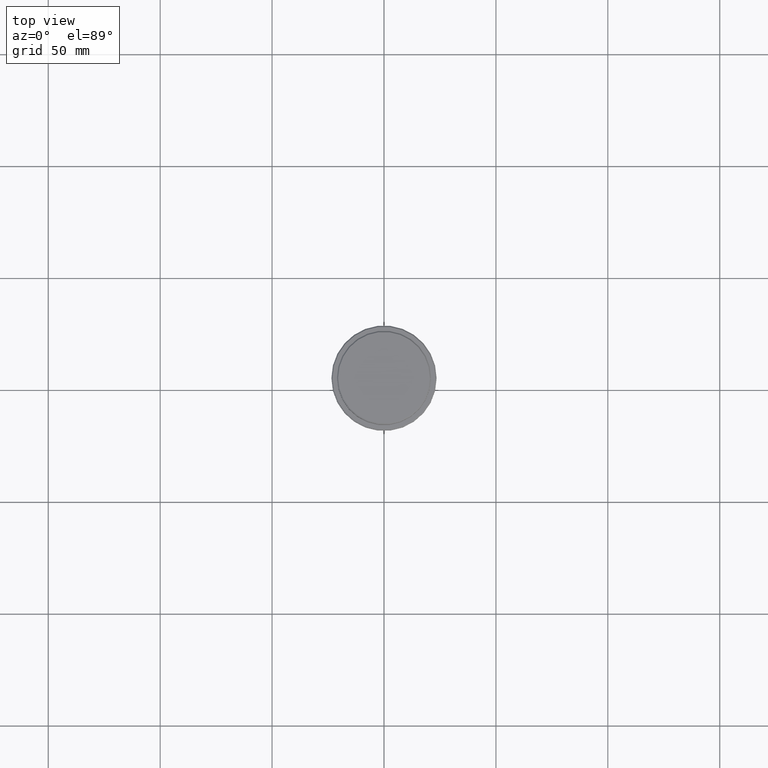
[diagram: clean part render]
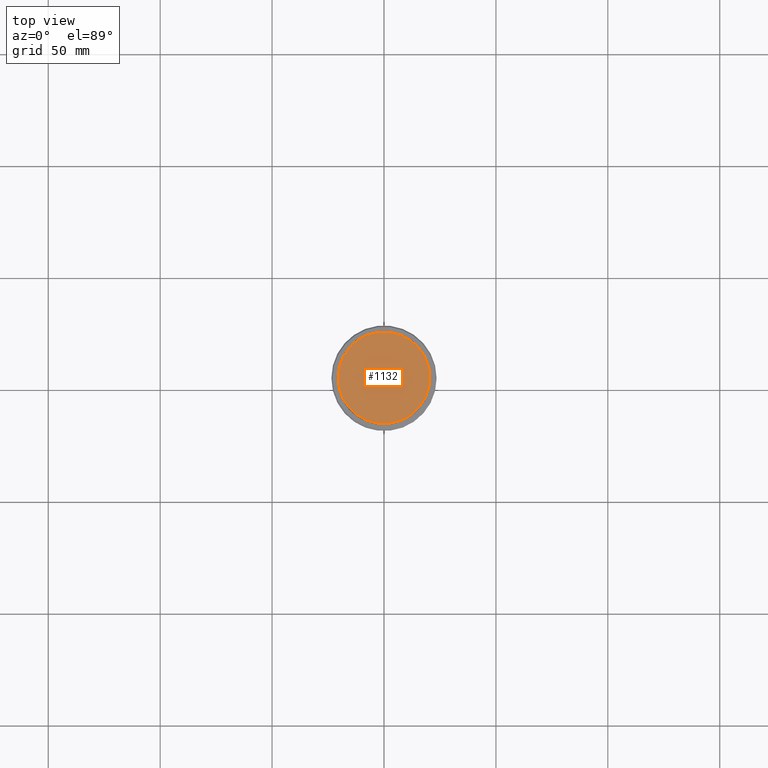
[diagram: same view with one face highlighted and labeled with its STEP entity id]
A machine part, top view. The second image highlights one B-rep face of the part: STEP entity #1132.
In plain terms, the highlighted planar face has unit normal (0, -0, 1).
Its self-contained STEP definition (entity closure, byte-faithful):
#15 = CIRCLE ( 'NONE', #804, 20.50000000000004619 ) ;
#128 = CARTESIAN_POINT ( 'NONE',  ( 0.000000000000000000, 0.000000000000000000, 0.000000000000000000 ) ) ;
#212 = VERTEX_POINT ( 'NONE', #1073 ) ;
#325 = CIRCLE ( 'NONE', #1130, 20.50000000000004619 ) ;
#385 = VERTEX_POINT ( 'NONE', #1320 ) ;
#405 = PLANE ( 'NONE',  #899 ) ;
#456 = DIRECTION ( 'NONE',  ( -0.000000000000000000, -0.000000000000000000, 1.000000000000000000 ) ) ;
#553 = FACE_OUTER_BOUND ( 'NONE', #1126, .T. ) ;
#804 = AXIS2_PLACEMENT_3D ( 'NONE', #999, #456, #986 ) ;
#810 = ORIENTED_EDGE ( 'NONE', *, *, #1015, .T. ) ;
#899 = AXIS2_PLACEMENT_3D ( 'NONE', #1098, #1202, #1186 ) ;
#911 = DIRECTION ( 'NONE',  ( -0.000000000000000000, -0.000000000000000000, 1.000000000000000000 ) ) ;
#986 = DIRECTION ( 'NONE',  ( 1.000000000000000000, 0.000000000000000000, 0.000000000000000000 ) ) ;
#999 = CARTESIAN_POINT ( 'NONE',  ( 0.000000000000000000, 0.000000000000000000, 0.000000000000000000 ) ) ;
#1015 = EDGE_CURVE ( 'NONE', #385, #212, #15, .T. ) ;
#1073 = CARTESIAN_POINT ( 'NONE',  ( -20.50000000000004619, 0.000000000000000000, 0.000000000000000000 ) ) ;
#1098 = CARTESIAN_POINT ( 'NONE',  ( 0.000000000000000000, 0.000000000000000000, 0.000000000000000000 ) ) ;
#1126 = EDGE_LOOP ( 'NONE', ( #1408, #810 ) ) ;
#1130 = AXIS2_PLACEMENT_3D ( 'NONE', #128, #911, #1215 ) ;
#1132 = ADVANCED_FACE ( 'NONE', ( #553 ), #405, .T. ) ;
#1186 = DIRECTION ( 'NONE',  ( 1.000000000000000000, 0.000000000000000000, 0.000000000000000000 ) ) ;
#1202 = DIRECTION ( 'NONE',  ( 0.000000000000000000, -0.000000000000000000, 1.000000000000000000 ) ) ;
#1215 = DIRECTION ( 'NONE',  ( 1.000000000000000000, 0.000000000000000000, 0.000000000000000000 ) ) ;
#1320 = CARTESIAN_POINT ( 'NONE',  ( 20.50000000000004619, 2.541142108230760635E-15, 0.000000000000000000 ) ) ;
#1346 = EDGE_CURVE ( 'NONE', #212, #385, #325, .T. ) ;
#1408 = ORIENTED_EDGE ( 'NONE', *, *, #1346, .T. ) ;